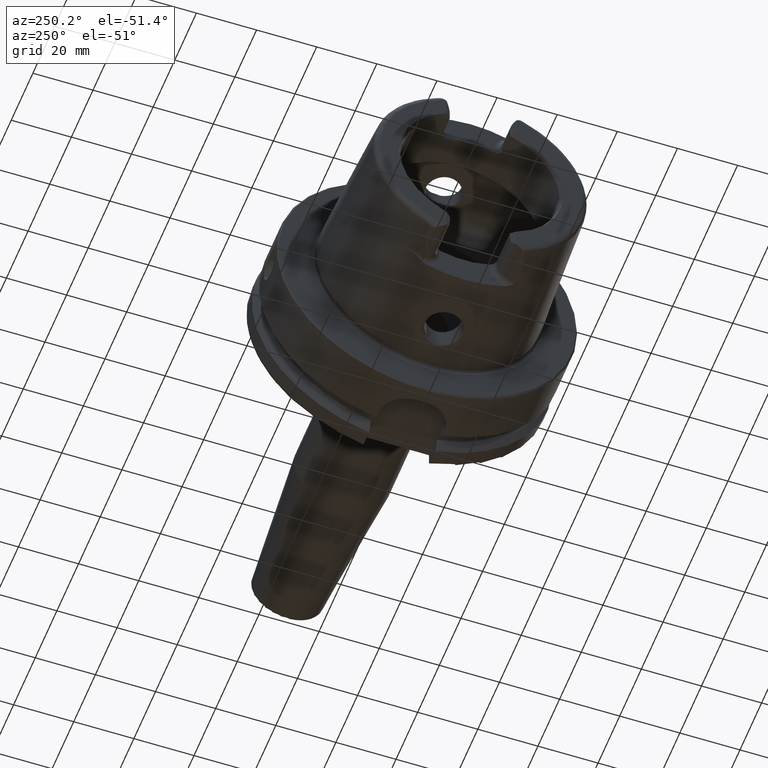
[diagram: clean part render]
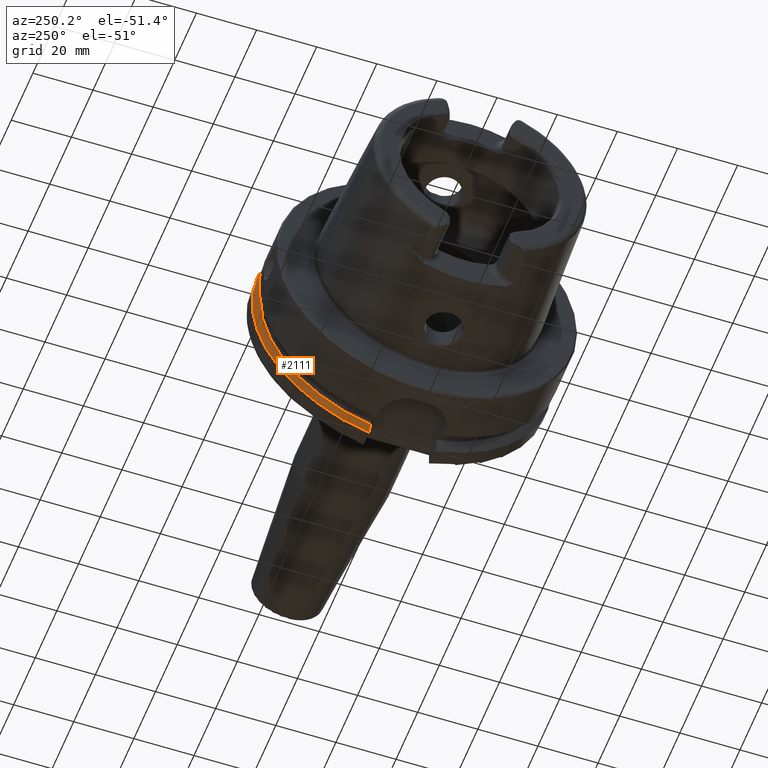
[diagram: same view with one face highlighted and labeled with its STEP entity id]
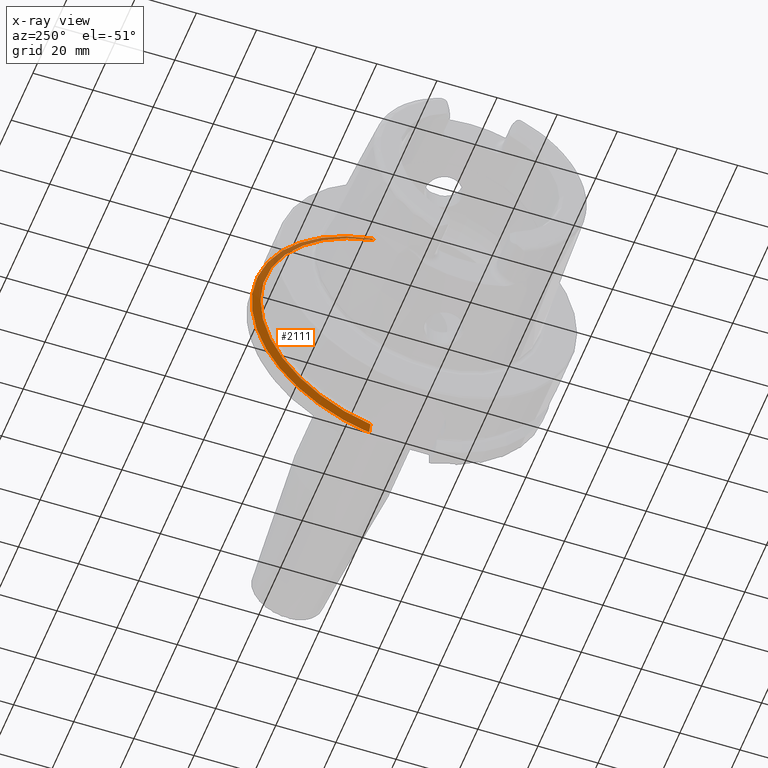
[diagram: x-ray of the same camera — body ghosted, the highlighted face saturated]
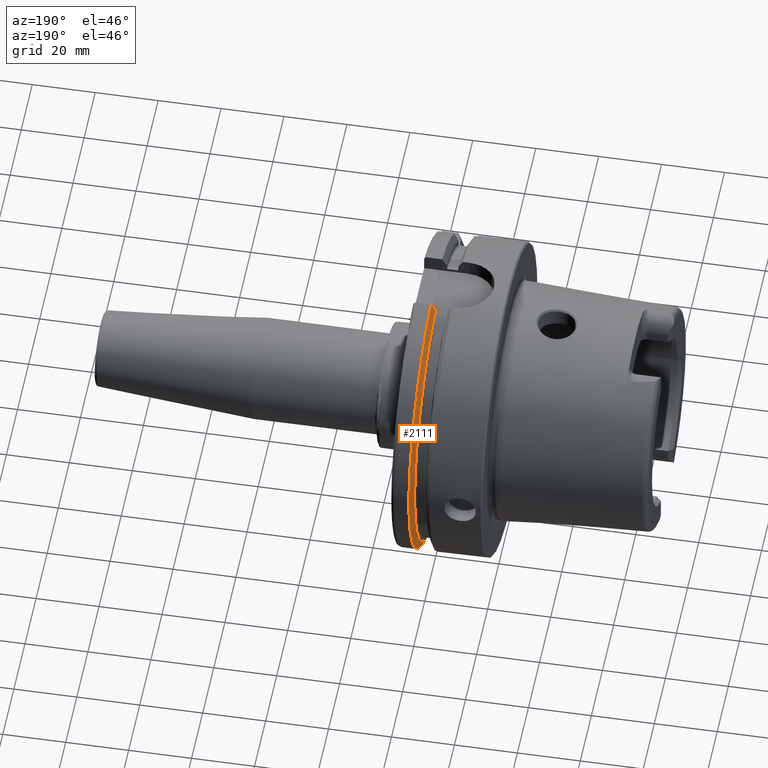
[diagram: same view with one face highlighted and labeled with its STEP entity id]
A machine part, auxiliary view. The second image highlights one B-rep face of the part: STEP entity #2111.
The next image is the same camera in x-ray: the body ghosted, the highlighted face saturated — about 15% of this face is hidden behind the body in this view.
A second angle (auxiliary view) of the same face is appended — the face is thin or edge-on in the first view.
In plain terms, the highlighted conical surface has half-angle 60 deg.
Its self-contained STEP definition (entity closure, byte-faithful):
#24=(
BOUNDED_CURVE()
B_SPLINE_CURVE(2,(#4318,#4319,#4320),.UNSPECIFIED.,.F.,.F.)
B_SPLINE_CURVE_WITH_KNOTS((3,3),(0.,0.28292349080556),.UNSPECIFIED.)
CURVE()
GEOMETRIC_REPRESENTATION_ITEM()
RATIONAL_B_SPLINE_CURVE((1.,1.0003193410929,1.))
REPRESENTATION_ITEM('')
);
#27=(
BOUNDED_CURVE()
B_SPLINE_CURVE(2,(#4409,#4410,#4411),.UNSPECIFIED.,.F.,.F.)
B_SPLINE_CURVE_WITH_KNOTS((3,3),(0.,0.281931851964124),.UNSPECIFIED.)
CURVE()
GEOMETRIC_REPRESENTATION_ITEM()
RATIONAL_B_SPLINE_CURVE((1.,1.00031639802473,1.))
REPRESENTATION_ITEM('')
);
#281=FACE_OUTER_BOUND('',#415,.T.);
#415=EDGE_LOOP('',(#1755,#1756,#1757,#1758));
#775=CIRCLE('',#2348,50.);
#777=CIRCLE('',#2352,47.5975952641917);
#991=VERTEX_POINT('',#4315);
#992=VERTEX_POINT('',#4317);
#1005=VERTEX_POINT('',#4401);
#1006=VERTEX_POINT('',#4407);
#1258=EDGE_CURVE('',#992,#991,#24,.T.);
#1279=EDGE_CURVE('',#992,#1005,#775,.T.);
#1282=EDGE_CURVE('',#991,#1006,#777,.T.);
#1283=EDGE_CURVE('',#1006,#1005,#27,.T.);
#1755=ORIENTED_EDGE('',*,*,#1258,.T.);
#1756=ORIENTED_EDGE('',*,*,#1282,.T.);
#1757=ORIENTED_EDGE('',*,*,#1283,.T.);
#1758=ORIENTED_EDGE('',*,*,#1279,.F.);
#2035=CONICAL_SURFACE('',#2351,48.7987976320958,1.0471975511966);
#2111=ADVANCED_FACE('',(#281),#2035,.T.);
#2348=AXIS2_PLACEMENT_3D('',#4402,#2861,#2862);
#2351=AXIS2_PLACEMENT_3D('',#4406,#2868,#2869);
#2352=AXIS2_PLACEMENT_3D('',#4408,#2870,#2871);
#2861=DIRECTION('center_axis',(1.,0.,0.));
#2862=DIRECTION('ref_axis',(0.,0.,-1.));
#2868=DIRECTION('center_axis',(1.,0.,0.));
#2869=DIRECTION('ref_axis',(0.,1.,0.));
#2870=DIRECTION('center_axis',(1.,0.,0.));
#2871=DIRECTION('ref_axis',(0.,0.,-1.));
#4315=CARTESIAN_POINT('',(21.875,11.,-46.3090819919138));
#4317=CARTESIAN_POINT('',(23.2620290209214,11.,-48.7749935930288));
#4318=CARTESIAN_POINT('Ctrl Pts',(23.2620290209214,11.,-48.7749935930288));
#4319=CARTESIAN_POINT('Ctrl Pts',(22.5505288964237,11.,-47.5116880808802));
#4320=CARTESIAN_POINT('Ctrl Pts',(21.875,11.,-46.3090819919138));
#4401=CARTESIAN_POINT('',(23.2620290209214,10.,48.9897948556636));
#4402=CARTESIAN_POINT('Origin',(23.2620290209214,0.,0.));
#4406=CARTESIAN_POINT('Origin',(22.5685145104607,0.,0.));
#4407=CARTESIAN_POINT('',(21.875,10.,46.5352670018535));
#4408=CARTESIAN_POINT('Origin',(21.875,0.,0.));
#4409=CARTESIAN_POINT('Ctrl Pts',(21.875,10.,46.5352670018535));
#4410=CARTESIAN_POINT('Ctrl Pts',(22.5506945724782,10.,47.7323213251992));
#4411=CARTESIAN_POINT('Ctrl Pts',(23.2620290209214,10.,48.9897948556636));